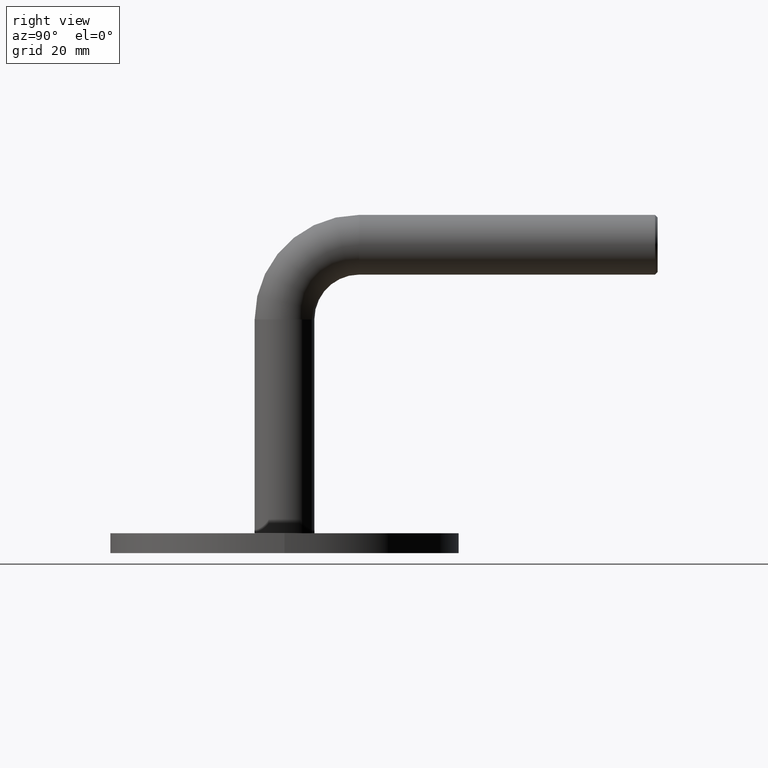
[diagram: clean part render]
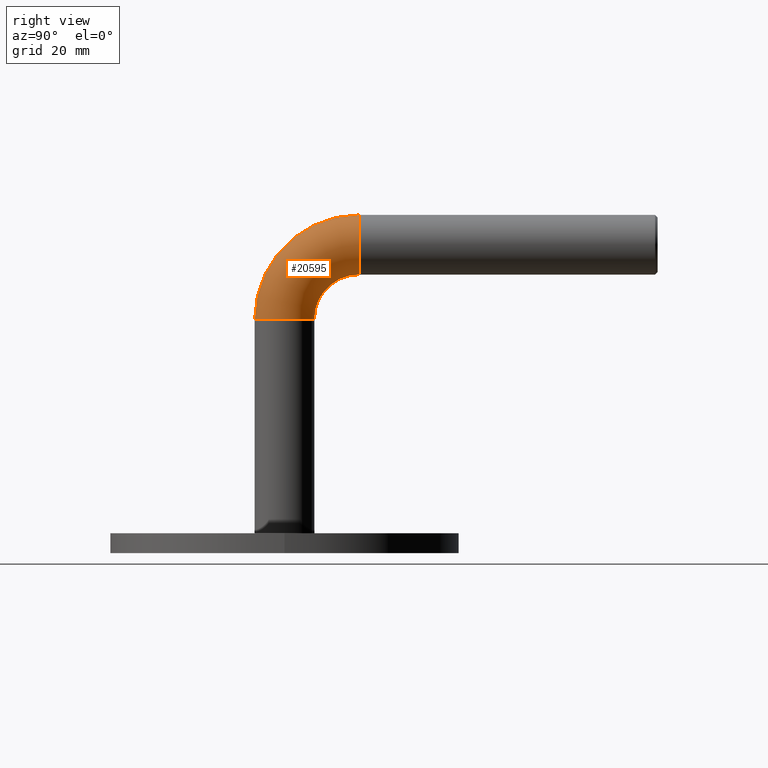
[diagram: same view with one face highlighted and labeled with its STEP entity id]
A machine part, right view. The second image highlights one B-rep face of the part: STEP entity #20595.
In plain terms, the highlighted toroidal blend (fillet) surface has major radius 15 mm and minor (blend) radius 6 mm.
Its self-contained STEP definition (entity closure, byte-faithful):
#88 = DIRECTION ( 'NONE',  ( 0.000000000000000000, 1.000000000000000000, 6.123233995736766036E-17 ) ) ;
#135 = EDGE_CURVE ( 'NONE', #17958, #7517, #12058, .T. ) ;
#1774 = CARTESIAN_POINT ( 'NONE',  ( 0.000000000000000000, -5.204170427930421283E-15, 43.00000000000000000 ) ) ;
#1847 = DIRECTION ( 'NONE',  ( 1.000000000000000000, 0.000000000000000000, 0.000000000000000000 ) ) ;
#1892 = DIRECTION ( 'NONE',  ( 0.000000000000000000, 0.000000000000000000, 1.000000000000000000 ) ) ;
#3603 = ORIENTED_EDGE ( 'NONE', *, *, #6690, .T. ) ;
#3711 = DIRECTION ( 'NONE',  ( -1.000000000000000000, -0.000000000000000000, 0.000000000000000000 ) ) ;
#3790 = CARTESIAN_POINT ( 'NONE',  ( 7.347880794884123680E-16, -6.000000000000006217, 43.00000000000000000 ) ) ;
#4334 = EDGE_CURVE ( 'NONE', #21025, #9540, #21253, .T. ) ;
#4353 = CARTESIAN_POINT ( 'NONE',  ( 7.347880794884120722E-16, 14.99999999999999467, 43.00000000000000000 ) ) ;
#4911 = EDGE_CURVE ( 'NONE', #17958, #21025, #13325, .T. ) ;
#4912 = CARTESIAN_POINT ( 'NONE',  ( 0.000000000000000000, 14.99999999999999289, 64.00000000000000000 ) ) ;
#4926 = ORIENTED_EDGE ( 'NONE', *, *, #4911, .F. ) ;
#6690 = EDGE_CURVE ( 'NONE', #7517, #9540, #20189, .T. ) ;
#6901 = CARTESIAN_POINT ( 'NONE',  ( 0.000000000000000000, 14.99999999999999467, 43.00000000000000000 ) ) ;
#6971 = CARTESIAN_POINT ( 'NONE',  ( 0.000000000000000000, 14.99999999999999467, 43.00000000000000000 ) ) ;
#7050 = AXIS2_PLACEMENT_3D ( 'NONE', #6901, #10476, #14353 ) ;
#7517 = VERTEX_POINT ( 'NONE', #19604 ) ;
#9540 = VERTEX_POINT ( 'NONE', #19943 ) ;
#10476 = DIRECTION ( 'NONE',  ( -1.000000000000000000, -0.000000000000000000, 0.000000000000000000 ) ) ;
#10892 = EDGE_LOOP ( 'NONE', ( #4926, #20167, #3603, #21389 ) ) ;
#12058 = CIRCLE ( 'NONE', #13573, 6.000000000000000888 ) ;
#13010 = AXIS2_PLACEMENT_3D ( 'NONE', #20845, #88, #20919 ) ;
#13187 = DIRECTION ( 'NONE',  ( 0.000000000000000000, 0.000000000000000000, 1.000000000000000000 ) ) ;
#13325 = CIRCLE ( 'NONE', #14184, 20.99999999999999645 ) ;
#13573 = AXIS2_PLACEMENT_3D ( 'NONE', #1774, #17418, #1847 ) ;
#13643 = DIRECTION ( 'NONE',  ( -1.000000000000000000, -0.000000000000000000, 0.000000000000000000 ) ) ;
#14184 = AXIS2_PLACEMENT_3D ( 'NONE', #6971, #3711, #1892 ) ;
#14353 = DIRECTION ( 'NONE',  ( 0.000000000000000000, 0.000000000000000000, 1.000000000000000000 ) ) ;
#14358 = FACE_OUTER_BOUND ( 'NONE', #10892, .T. ) ;
#14645 = AXIS2_PLACEMENT_3D ( 'NONE', #4353, #13643, #13187 ) ;
#15454 = TOROIDAL_SURFACE ( 'NONE', #7050, 15.00000000000000000, 6.000000000000000888 ) ;
#17418 = DIRECTION ( 'NONE',  ( 0.000000000000000000, 0.000000000000000000, 1.000000000000000000 ) ) ;
#17958 = VERTEX_POINT ( 'NONE', #3790 ) ;
#19604 = CARTESIAN_POINT ( 'NONE',  ( 0.000000000000000000, 5.999999999999995559, 43.00000000000000000 ) ) ;
#19943 = CARTESIAN_POINT ( 'NONE',  ( 7.347880794884122694E-16, 14.99999999999999289, 52.00000000000000000 ) ) ;
#20167 = ORIENTED_EDGE ( 'NONE', *, *, #135, .T. ) ;
#20189 = CIRCLE ( 'NONE', #14645, 9.000000000000001776 ) ;
#20595 = ADVANCED_FACE ( 'NONE', ( #14358 ), #15454, .T. ) ;
#20845 = CARTESIAN_POINT ( 'NONE',  ( 0.000000000000000000, 14.99999999999999289, 57.99999999999999289 ) ) ;
#20919 = DIRECTION ( 'NONE',  ( 1.000000000000000000, 0.000000000000000000, 0.000000000000000000 ) ) ;
#21025 = VERTEX_POINT ( 'NONE', #4912 ) ;
#21253 = CIRCLE ( 'NONE', #13010, 6.000000000000000888 ) ;
#21389 = ORIENTED_EDGE ( 'NONE', *, *, #4334, .F. ) ;